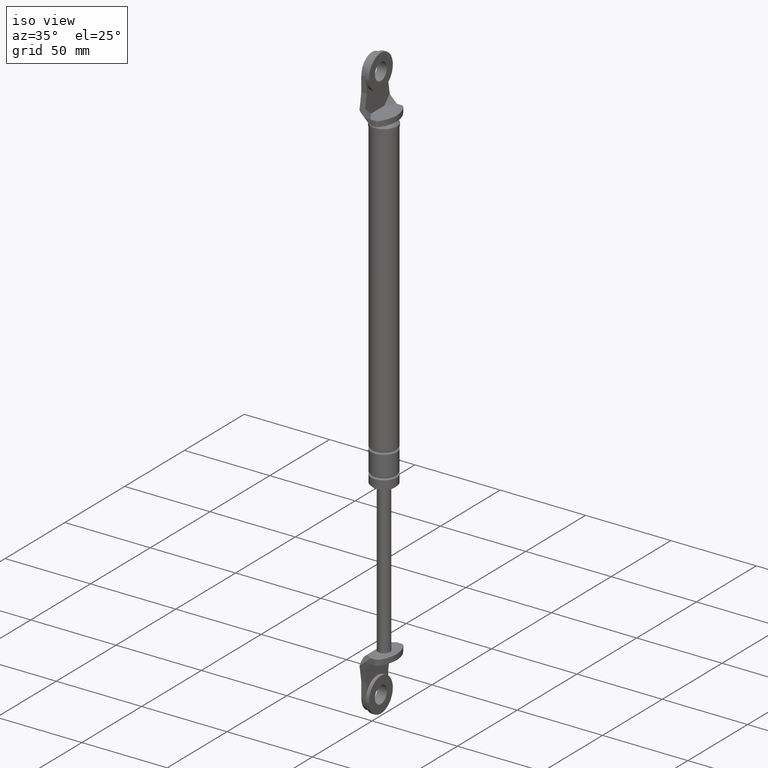
[diagram: clean part render]
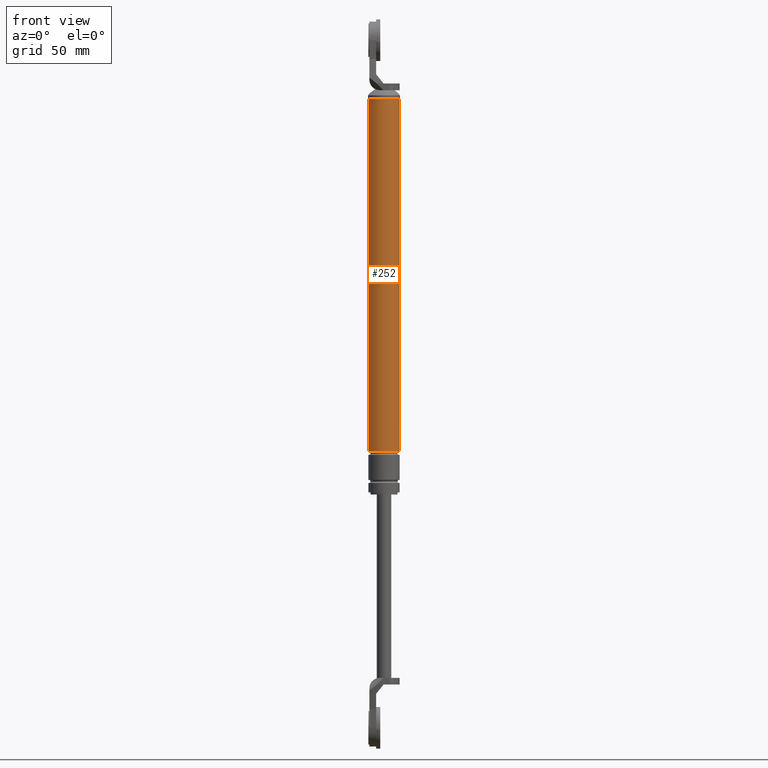
[diagram: tour spotlight — one face highlighted and labeled with its STEP entity id]
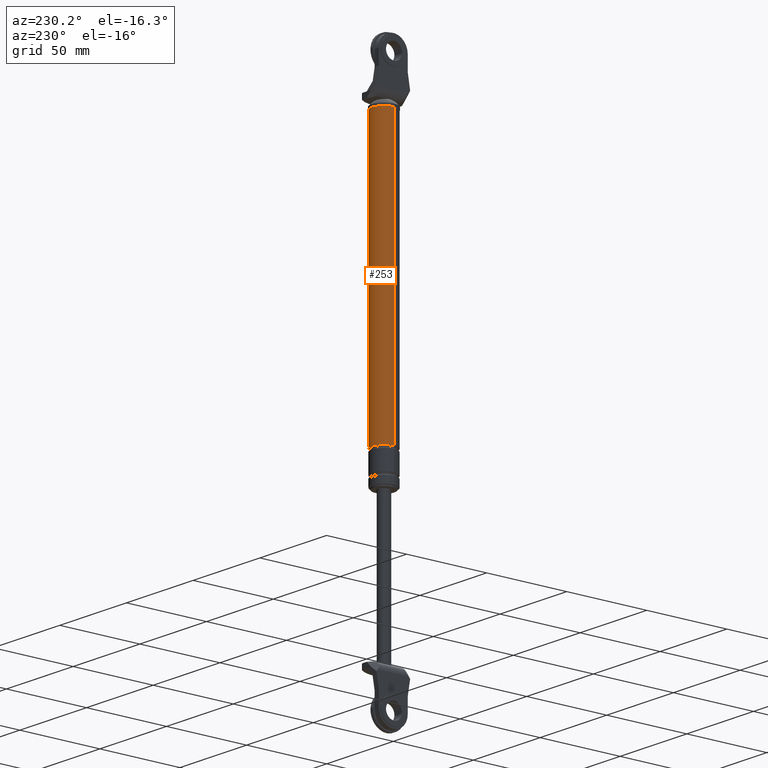
[diagram: tour spotlight — one face highlighted and labeled with its STEP entity id]
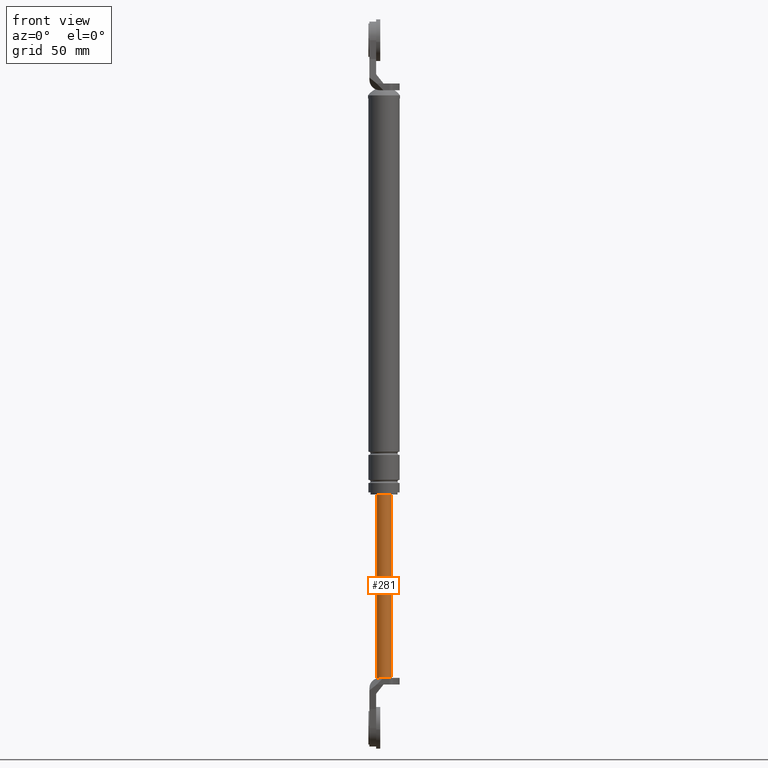
[diagram: tour spotlight — one face highlighted and labeled with its STEP entity id]
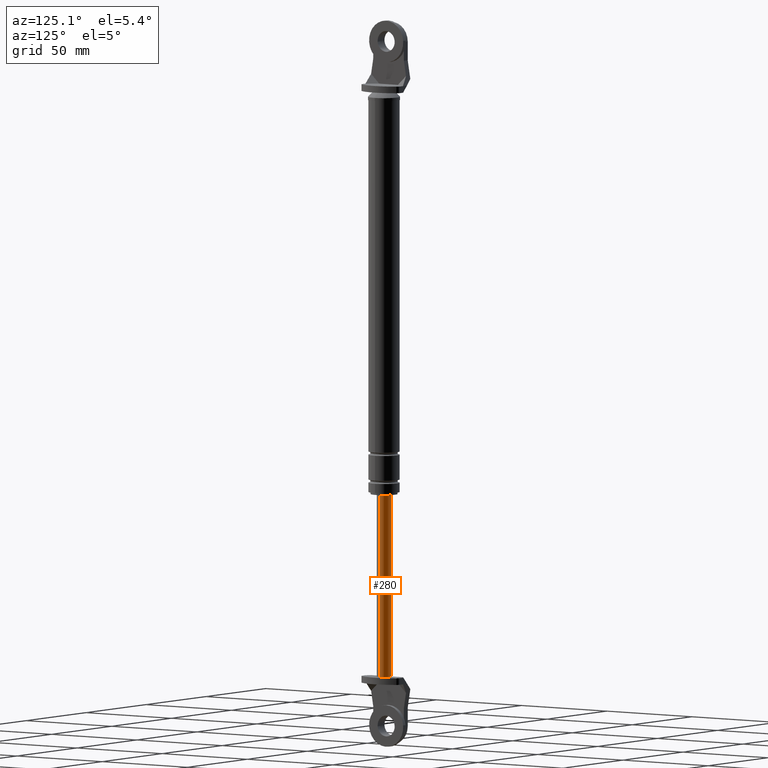
[diagram: tour spotlight — one face highlighted and labeled with its STEP entity id]
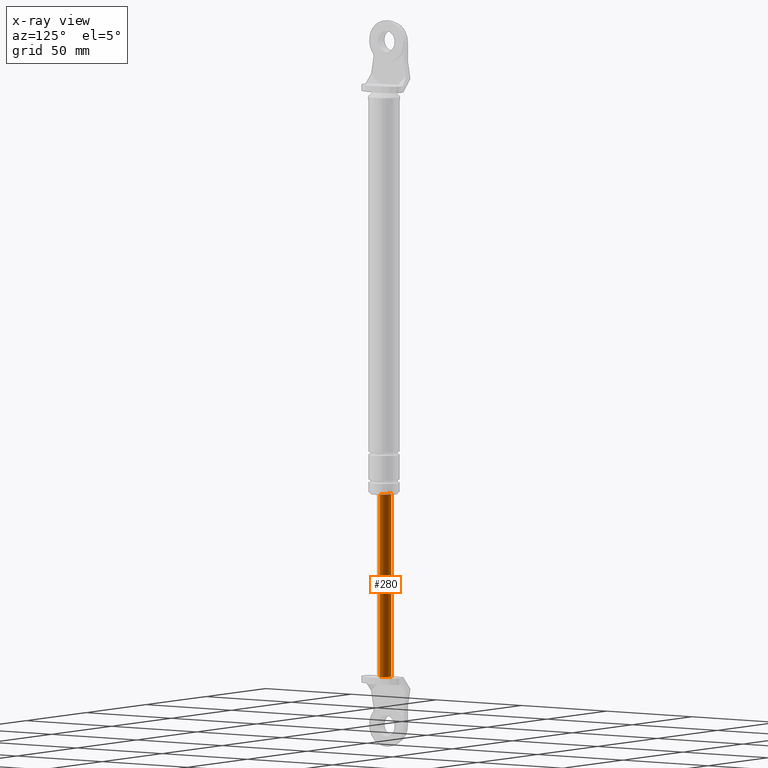
[diagram: x-ray of the same camera — body ghosted, this tour face saturated]
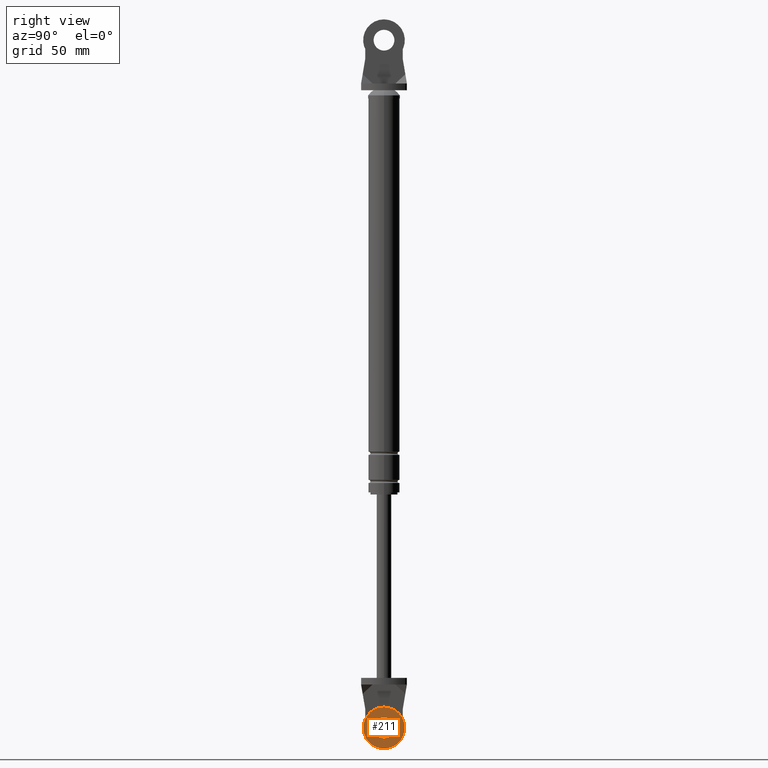
[diagram: tour spotlight — one face highlighted and labeled with its STEP entity id]
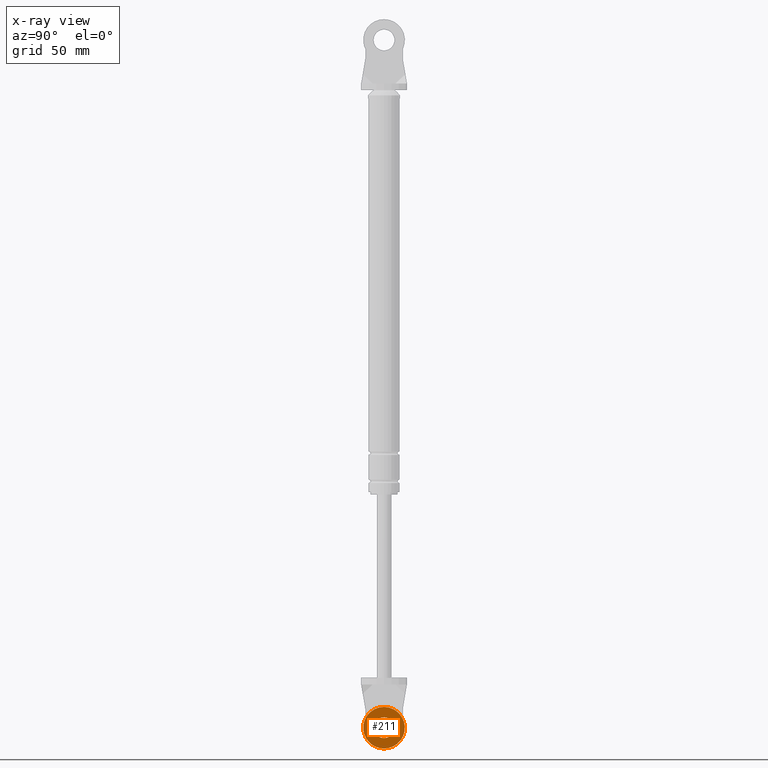
[diagram: x-ray of the same camera — body ghosted, this tour face saturated]
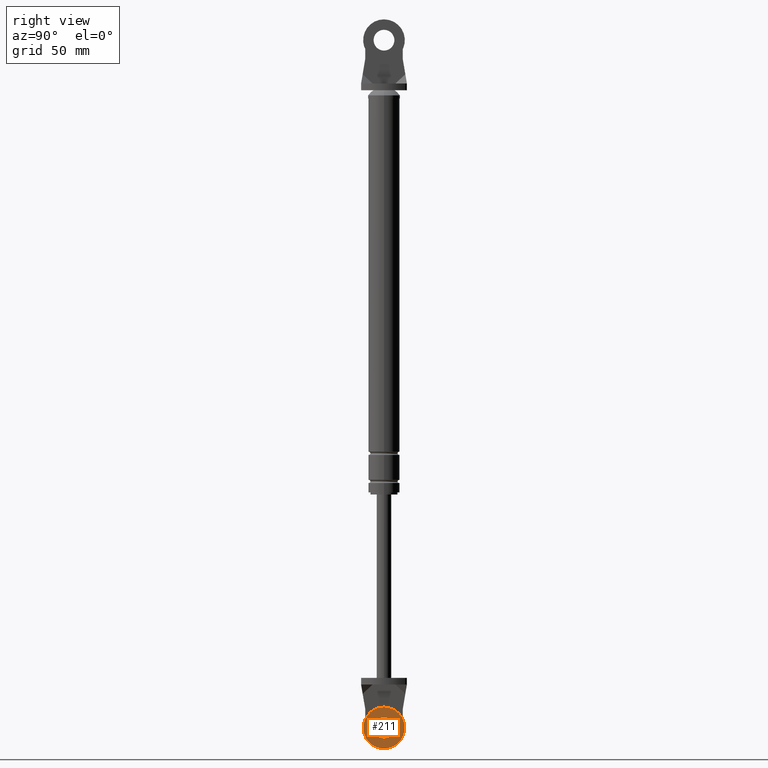
[diagram: tour spotlight — one face highlighted and labeled with its STEP entity id]
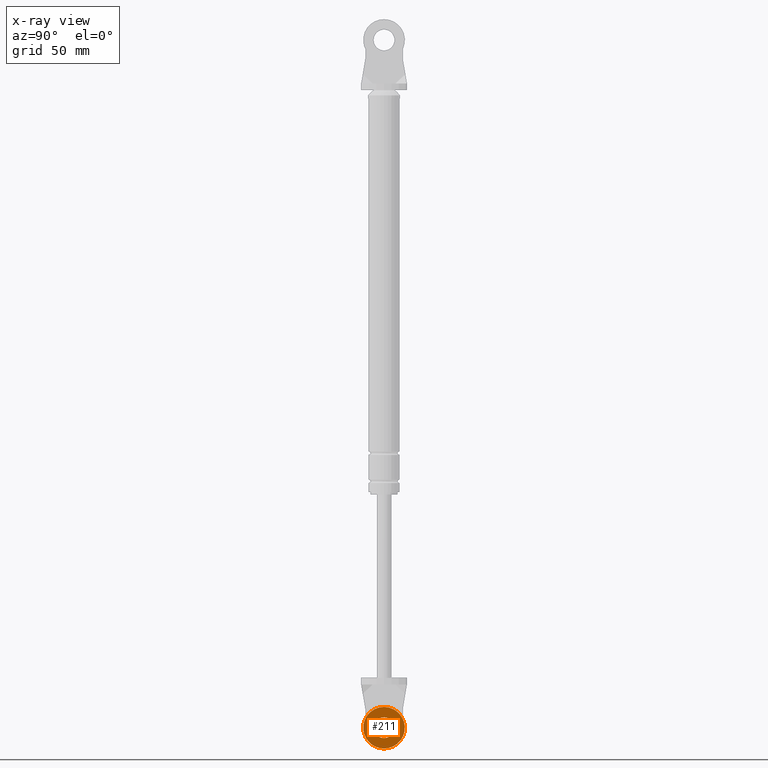
[diagram: x-ray of the same camera — body ghosted, this tour face saturated]
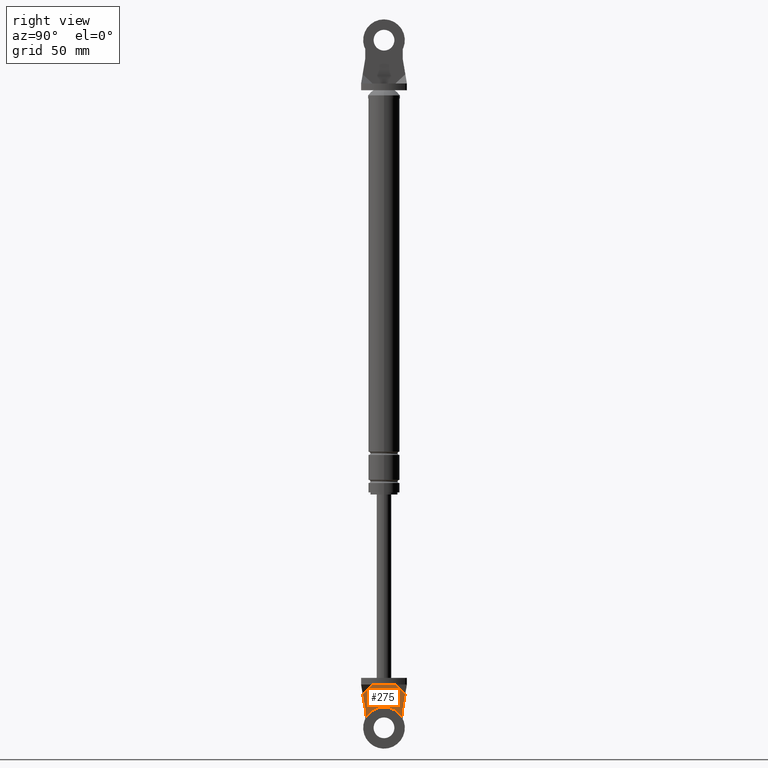
[diagram: tour spotlight — one face highlighted and labeled with its STEP entity id]
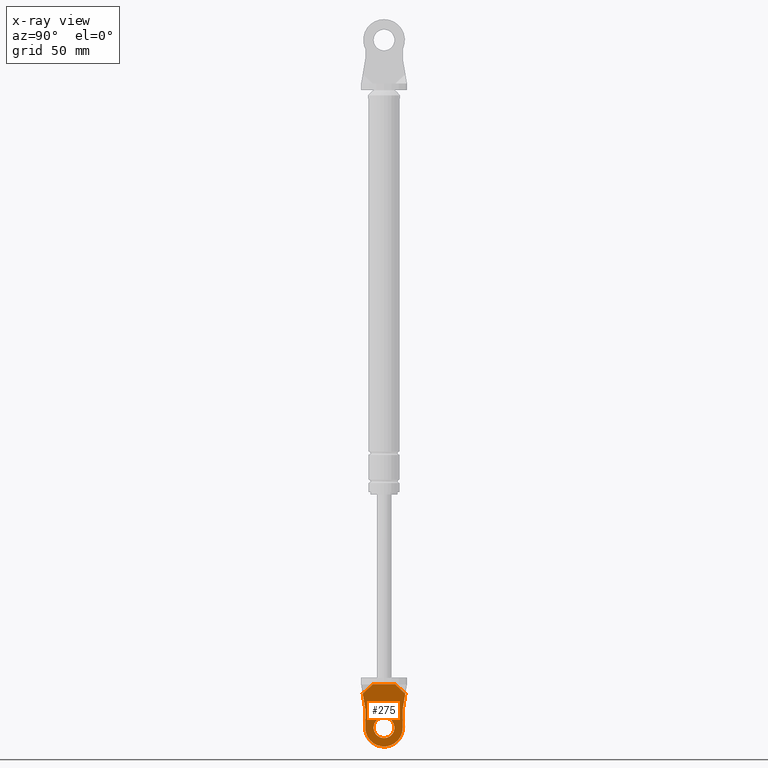
[diagram: x-ray of the same camera — body ghosted, this tour face saturated]
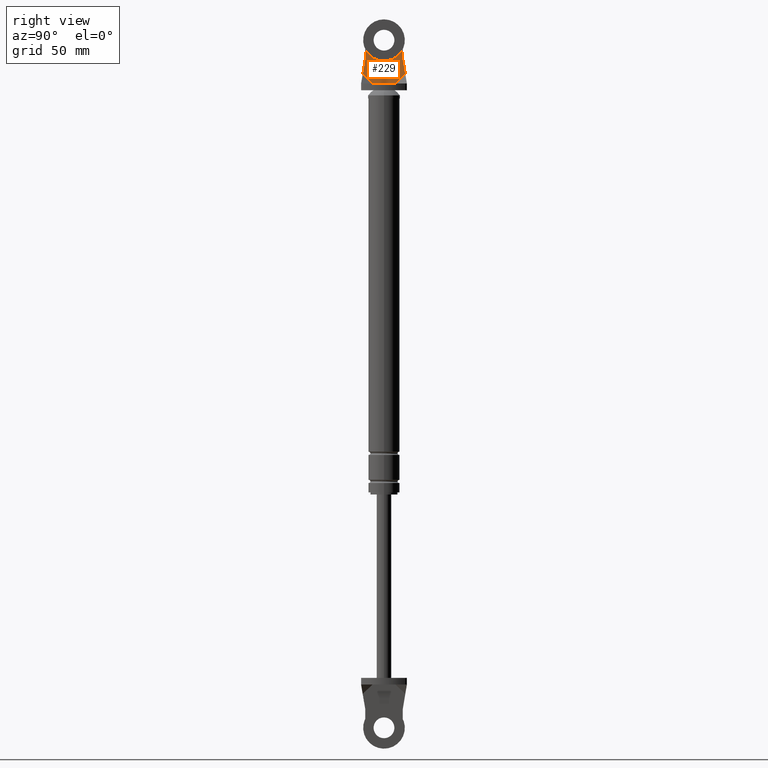
[diagram: tour spotlight — one face highlighted and labeled with its STEP entity id]
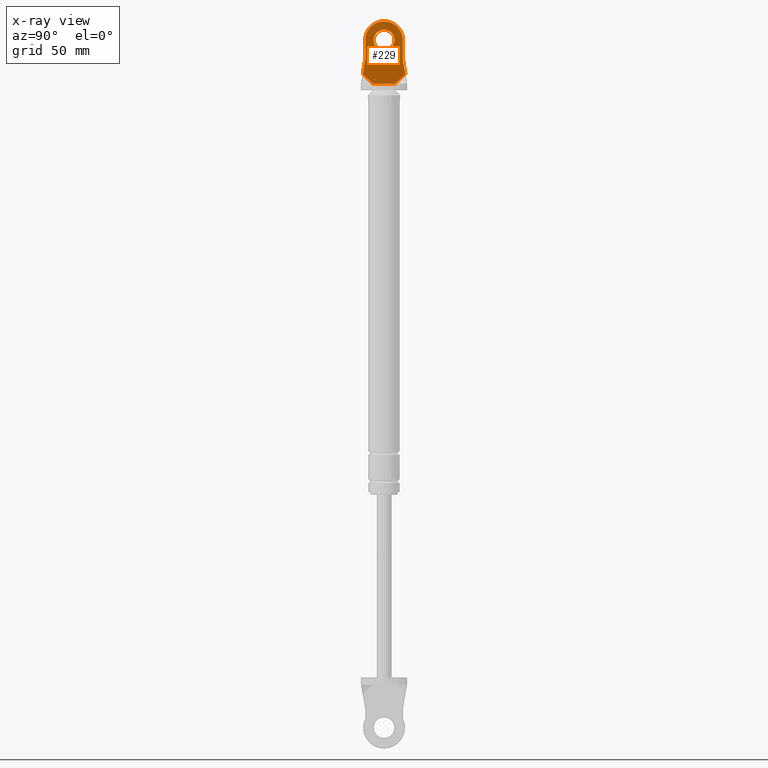
[diagram: x-ray of the same camera — body ghosted, this tour face saturated]
A machine part: a face-by-face anatomy tour. The part has 92 B-rep faces; the first image is the clean iso view, then the 8 largest visible faces are spotlighted one at a time (largest first), each with its STEP entity span.

Face 1 — front view, entity #252. In plain terms, the highlighted cylindrical surface (edge-blend (fillet) strip) has radius 7.5 mm, axis along (0, 0, -1).
Definition (entity closure, byte-faithful):
#252=ADVANCED_FACE('',(#777),#776,.T.);
#776=CYLINDRICAL_SURFACE('',#1395,7.50000000000E+000);
#777=FACE_OUTER_BOUND('',#1396,.T.);
#1392=CARTESIAN_POINT('',(7.00000000000E+000,0.00000000000E+000,1.02800000000E+003));
#1393=DIRECTION('',(-0.00000000000E+000,-0.00000000000E+000,1.00000000000E+000));
#1394=DIRECTION('',(1.00000000000E+000,-0.00000000000E+000,-0.00000000000E+000));
#1395=AXIS2_PLACEMENT_3D('',#1392,#1393,#1394);
#1396=EDGE_LOOP('',(#1836,#1837,#1838,#1839));
#1836=ORIENTED_EDGE('',*,*,#2100,.F.);
#1837=ORIENTED_EDGE('',*,*,#2124,.F.);
#1838=ORIENTED_EDGE('',*,*,#2030,.F.);
#1839=ORIENTED_EDGE('',*,*,#2125,.T.);
#2030=EDGE_CURVE('',#2426,#2427,#2428,.T.);
#2100=EDGE_CURVE('',#2898,#2899,#2900,.T.);
#2124=EDGE_CURVE('',#2427,#2898,#3056,.T.);
#2125=EDGE_CURVE('',#2426,#2899,#3062,.T.);
#2426=VERTEX_POINT('',#3676);
#2427=VERTEX_POINT('',#3677);
#2428=CIRCLE('',#3681,7.50000000000E+000);
#2898=VERTEX_POINT('',#3978);
#2899=VERTEX_POINT('',#3979);
#2900=CIRCLE('',#3983,7.50000000000E+000);
#3056=(BOUNDED_CURVE() B_SPLINE_CURVE(1,(#4076,#4077),.UNSPECIFIED.,.F.,.F.) B_SPLINE_CURVE_WITH_KNOTS((2,2),(5.27704486623E-002,9.47229551296E-001),.UNSPECIFIED.) CURVE() GEOMETRIC_REPRESENTATION_ITEM() RATIONAL_B_SPLINE_CURVE((1.00000000000E+000,1.00000000000E+000)) REPRESENTATION_ITEM('') );
#3062=(BOUNDED_CURVE() B_SPLINE_CURVE(1,(#4078,#4079),.UNSPECIFIED.,.F.,.F.) B_SPLINE_CURVE_WITH_KNOTS((2,2),(5.27704485488E-002,9.47229551451E-001),.UNSPECIFIED.) CURVE() GEOMETRIC_REPRESENTATION_ITEM() RATIONAL_B_SPLINE_CURVE((7.50000000000E-001,7.50000000000E-001)) REPRESENTATION_ITEM('') );
#3676=CARTESIAN_POINT('',(-5.00000000000E-001,0.00000000000E+000,2.80000000000E+001));
#3677=CARTESIAN_POINT('',(1.45000000000E+001,5.92118946467E-016,2.80000000000E+001));
#3678=CARTESIAN_POINT('',(7.00000000000E+000,0.00000000000E+000,2.80000000000E+001));
#3679=DIRECTION('',(-0.00000000000E+000,0.00000000000E+000,-1.00000000000E+000));
#3680=DIRECTION('',(-1.00000000000E+000,-1.22460635382E-016,0.00000000000E+000));
#3681=AXIS2_PLACEMENT_3D('',#3678,#3679,#3680);
#3978=CARTESIAN_POINT('',(1.45000000000E+001,0.00000000000E+000,1.97500000000E+002));
#3979=CARTESIAN_POINT('',(-5.00000000000E-001,5.92118946467E-016,1.97500000000E+002));
#3980=CARTESIAN_POINT('',(7.00000000000E+000,0.00000000000E+000,1.97500000000E+002));
#3981=DIRECTION('',(0.00000000000E+000,0.00000000000E+000,1.00000000000E+000));
#3982=DIRECTION('',(1.00000000000E+000,-1.22460635382E-016,0.00000000000E+000));
#3983=AXIS2_PLACEMENT_3D('',#3980,#3981,#3982);
#4076=CARTESIAN_POINT('',(1.45000000000E+001,0.00000000000E+000,2.80000000215E+001));
#4077=CARTESIAN_POINT('',(1.45000000000E+001,0.00000000000E+000,1.97499999971E+002));
#4078=CARTESIAN_POINT('',(-5.00000000000E-001,-2.96059473233E-016,2.80000000000E+001));
#4079=CARTESIAN_POINT('',(-5.00000000000E-001,-2.96059473233E-016,1.97500000000E+002));

Face 2 — auxiliary view, entity #253. In plain terms, the highlighted cylindrical surface (edge-blend (fillet) strip) has radius 7.5 mm, axis along (0, 0, -1).
Definition (entity closure, byte-faithful):
#253=ADVANCED_FACE('',(#787),#786,.T.);
#786=CYLINDRICAL_SURFACE('',#1400,7.50000000000E+000);
#787=FACE_OUTER_BOUND('',#1401,.T.);
#1397=CARTESIAN_POINT('',(7.00000000000E+000,0.00000000000E+000,1.02800000000E+003));
#1398=DIRECTION('',(-0.00000000000E+000,-0.00000000000E+000,1.00000000000E+000));
#1399=DIRECTION('',(1.00000000000E+000,-0.00000000000E+000,-0.00000000000E+000));
#1400=AXIS2_PLACEMENT_3D('',#1397,#1398,#1399);
#1401=EDGE_LOOP('',(#1840,#1841,#1842,#1843));
#1840=ORIENTED_EDGE('',*,*,#2031,.F.);
#1841=ORIENTED_EDGE('',*,*,#2124,.T.);
#1842=ORIENTED_EDGE('',*,*,#2101,.F.);
#1843=ORIENTED_EDGE('',*,*,#2125,.F.);
#2031=EDGE_CURVE('',#2427,#2426,#2434,.T.);
#2101=EDGE_CURVE('',#2899,#2898,#2906,.T.);
#2124=EDGE_CURVE('',#2427,#2898,#3056,.T.);
#2125=EDGE_CURVE('',#2426,#2899,#3062,.T.);
#2426=VERTEX_POINT('',#3676);
#2427=VERTEX_POINT('',#3677);
#2434=CIRCLE('',#3685,7.50000000000E+000);
#2898=VERTEX_POINT('',#3978);
#2899=VERTEX_POINT('',#3979);
#2906=CIRCLE('',#3987,7.50000000000E+000);
#3056=(BOUNDED_CURVE() B_SPLINE_CURVE(1,(#4076,#4077),.UNSPECIFIED.,.F.,.F.) B_SPLINE_CURVE_WITH_KNOTS((2,2),(5.27704486623E-002,9.47229551296E-001),.UNSPECIFIED.) CURVE() GEOMETRIC_REPRESENTATION_ITEM() RATIONAL_B_SPLINE_CURVE((1.00000000000E+000,1.00000000000E+000)) REPRESENTATION_ITEM('') );
#3062=(BOUNDED_CURVE() B_SPLINE_CURVE(1,(#4078,#4079),.UNSPECIFIED.,.F.,.F.) B_SPLINE_CURVE_WITH_KNOTS((2,2),(5.27704485488E-002,9.47229551451E-001),.UNSPECIFIED.) CURVE() GEOMETRIC_REPRESENTATION_ITEM() RATIONAL_B_SPLINE_CURVE((7.50000000000E-001,7.50000000000E-001)) REPRESENTATION_ITEM('') );
#3676=CARTESIAN_POINT('',(-5.00000000000E-001,0.00000000000E+000,2.80000000000E+001));
#3677=CARTESIAN_POINT('',(1.45000000000E+001,5.92118946467E-016,2.80000000000E+001));
#3682=CARTESIAN_POINT('',(7.00000000000E+000,0.00000000000E+000,2.80000000000E+001));
#3683=DIRECTION('',(-0.00000000000E+000,0.00000000000E+000,-1.00000000000E+000));
#3684=DIRECTION('',(-1.00000000000E+000,-1.22460635382E-016,0.00000000000E+000));
#3685=AXIS2_PLACEMENT_3D('',#3682,#3683,#3684);
#3978=CARTESIAN_POINT('',(1.45000000000E+001,0.00000000000E+000,1.97500000000E+002));
#3979=CARTESIAN_POINT('',(-5.00000000000E-001,5.92118946467E-016,1.97500000000E+002));
#3984=CARTESIAN_POINT('',(7.00000000000E+000,0.00000000000E+000,1.97500000000E+002));
#3985=DIRECTION('',(0.00000000000E+000,0.00000000000E+000,1.00000000000E+000));
#3986=DIRECTION('',(1.00000000000E+000,-1.22460635382E-016,0.00000000000E+000));
#3987=AXIS2_PLACEMENT_3D('',#3984,#3985,#3986);
#4076=CARTESIAN_POINT('',(1.45000000000E+001,0.00000000000E+000,2.80000000215E+001));
#4077=CARTESIAN_POINT('',(1.45000000000E+001,0.00000000000E+000,1.97499999971E+002));
#4078=CARTESIAN_POINT('',(-5.00000000000E-001,-2.96059473233E-016,2.80000000000E+001));
#4079=CARTESIAN_POINT('',(-5.00000000000E-001,-2.96059473233E-016,1.97500000000E+002));

Face 3 — front view, entity #281. In plain terms, the highlighted cylindrical surface (edge-blend (fillet) strip) has radius 3.5 mm, axis along (-0, 0, 1).
Definition (entity closure, byte-faithful):
#281=ADVANCED_FACE('',(#1069),#1068,.T.);
#1068=CYLINDRICAL_SURFACE('',#1584,3.50000000000E+000);
#1069=FACE_OUTER_BOUND('',#1585,.T.);
#1581=CARTESIAN_POINT('',(7.00000000000E+000,6.39488462184E-014,-6.93000000000E+002));
#1582=DIRECTION('',(-0.00000000000E+000,-0.00000000000E+000,-1.00000000000E+000));
#1583=DIRECTION('',(1.00000000000E+000,-0.00000000000E+000,-0.00000000000E+000));
#1584=AXIS2_PLACEMENT_3D('',#1581,#1582,#1583);
#1585=EDGE_LOOP('',(#1983,#1984,#1985,#1986,#1987));
#1983=ORIENTED_EDGE('',*,*,#2158,.F.);
#1984=ORIENTED_EDGE('',*,*,#2172,.T.);
#1985=ORIENTED_EDGE('',*,*,#2192,.T.);
#1986=ORIENTED_EDGE('',*,*,#2156,.F.);
#1987=ORIENTED_EDGE('',*,*,#2193,.F.);
#2156=EDGE_CURVE('',#3264,#3263,#3271,.T.);
#2158=EDGE_CURVE('',#3277,#3285,#3286,.T.);
#2172=EDGE_CURVE('',#3277,#3371,#3378,.T.);
#2192=EDGE_CURVE('',#3371,#3263,#3506,.T.);
#2193=EDGE_CURVE('',#3285,#3264,#3512,.T.);
#3263=VERTEX_POINT('',#4188);
#3264=VERTEX_POINT('',#4189);
#3271=CIRCLE('',#4197,3.50000000000E+000);
#3277=VERTEX_POINT('',#4198);
#3285=VERTEX_POINT('',#4203);
#3286=(BOUNDED_CURVE() B_SPLINE_CURVE(3,(#4204,#4205,#4206,#4207,#4208,#4209,#4210,#4211,#4212,#4213),.UNSPECIFIED.,.F.,.F.) B_SPLINE_CURVE_WITH_KNOTS((4,2,2,2,4),(3.34434791223E-003,4.18541121011E-003,5.02647450800E-003,5.86753780588E-003,6.70946929516E-003),.UNSPECIFIED.) CURVE() GEOMETRIC_REPRESENTATION_ITEM() RATIONAL_B_SPLINE_CURVE((1.00000000000E+000,1.00000000000E+000,1.00000000000E+000,1.00000000000E+000,1.00000000000E+000,1.00000000000E+000,1.00000000000E+000,1.00000000000E+000,1.00000000000E+000,1.00000000000E+000)) REPRESENTATION_ITEM('') );
#3371=VERTEX_POINT('',#4267);
#3378=CIRCLE('',#4275,3.50000000000E+000);
#3506=(BOUNDED_CURVE() B_SPLINE_CURVE(1,(#4344,#4345),.UNSPECIFIED.,.F.,.F.) B_SPLINE_CURVE_WITH_KNOTS((2,2),(8.55089452111E-002,9.16666666824E-001),.UNSPECIFIED.) CURVE() GEOMETRIC_REPRESENTATION_ITEM() RATIONAL_B_SPLINE_CURVE((1.00000000000E+000,1.00000000000E+000)) REPRESENTATION_ITEM('') );
#3512=(BOUNDED_CURVE() B_SPLINE_CURVE(1,(#4346,#4347),.UNSPECIFIED.,.F.,.F.) B_SPLINE_CURVE_WITH_KNOTS((2,2),(8.33337324108E-002,9.16666666667E-001),.UNSPECIFIED.) CURVE() GEOMETRIC_REPRESENTATION_ITEM() RATIONAL_B_SPLINE_CURVE((7.50000000000E-001,7.50000000000E-001)) REPRESENTATION_ITEM('') );
#4188=CARTESIAN_POINT('',(1.05000000000E+001,6.39488462184E-014,2.18000000000E+002));
#4189=CARTESIAN_POINT('',(3.50000000000E+000,6.38008164818E-014,2.18000000000E+002));
#4194=CARTESIAN_POINT('',(7.00000000000E+000,6.39488462184E-014,2.18000000000E+002));
#4195=DIRECTION('',(0.00000000000E+000,0.00000000000E+000,-1.00000000000E+000));
#4196=DIRECTION('',(1.00000000000E+000,1.22460635382E-016,0.00000000000E+000));
#4197=AXIS2_PLACEMENT_3D('',#4194,#4195,#4196);
#4198=CARTESIAN_POINT('',(5.00000000000E+000,2.87228132327E+000,3.06000000000E+002));
#4203=CARTESIAN_POINT('',(3.50000091517E+000,-2.53326592987E-003,3.06230303704E+002));
#4204=CARTESIAN_POINT('',(5.00000000000E+000,2.87228132327E+000,3.06000000000E+002));
#4205=CARTESIAN_POINT('',(4.76716664125E+000,2.71015698199E+000,3.06000000000E+002));
#4206=CARTESIAN_POINT('',(4.55808157072E+000,2.52318194664E+000,3.06016035406E+002));
#4207=CARTESIAN_POINT('',(4.18584671777E+000,2.09998906074E+000,3.06063164029E+002));
#4208=CARTESIAN_POINT('',(4.02654942899E+000,1.86724781926E+000,3.06093885871E+002));
#4209=CARTESIAN_POINT('',(3.76803305696E+000,1.37201034832E+000,3.06152338779E+002));
#4210=CARTESIAN_POINT('',(3.66724217685E+000,1.10490389736E+000,3.06180398209E+002));
#4211=CARTESIAN_POINT('',(3.53414800065E+000,5.62100746100E-001,3.06219196432E+002));
#4212=CARTESIAN_POINT('',(3.49986644238E+000,2.81243707189E-001,3.06230345995E+002));
#4213=CARTESIAN_POINT('',(3.50000053060E+000,-1.94923060108E-003,3.06230303826E+002));
#4267=CARTESIAN_POINT('',(1.05000000000E+001,6.30200217923E-014,3.06000000000E+002));
#4272=CARTESIAN_POINT('',(7.00000000000E+000,6.39488462184E-014,3.06000000000E+002));
#4273=DIRECTION('',(0.00000000000E+000,-0.00000000000E+000,-1.00000000000E+000));
#4274=DIRECTION('',(-5.71428571429E-001,-8.20651806648E-001,0.00000000000E+000));
#4275=AXIS2_PLACEMENT_3D('',#4272,#4273,#4274);
#4344=CARTESIAN_POINT('',(1.05000000000E+001,6.39488462184E-014,3.06000000008E+002));
#4345=CARTESIAN_POINT('',(1.05000000000E+001,6.39488462184E-014,2.17999999983E+002));
#4346=CARTESIAN_POINT('',(3.50000000000E+000,6.39488462184E-014,3.06230303742E+002));
#4347=CARTESIAN_POINT('',(3.50000000000E+000,6.39488462184E-014,2.18000000000E+002));

Face 4 — auxiliary view, entity #280. An x-ray twin of the same camera follows (body ghosted, this face saturated) — the face is partly hidden behind the body. In plain terms, the highlighted cylindrical surface (edge-blend (fillet) strip) has radius 3.5 mm, axis along (-0, 0, 1).
Definition (entity closure, byte-faithful):
#280=ADVANCED_FACE('',(#1059),#1058,.T.);
#1058=CYLINDRICAL_SURFACE('',#1579,3.50000000000E+000);
#1059=FACE_OUTER_BOUND('',#1580,.T.);
#1576=CARTESIAN_POINT('',(7.00000000000E+000,6.39488462184E-014,-6.93000000000E+002));
#1577=DIRECTION('',(-0.00000000000E+000,-0.00000000000E+000,-1.00000000000E+000));
#1578=DIRECTION('',(1.00000000000E+000,-0.00000000000E+000,-0.00000000000E+000));
#1579=AXIS2_PLACEMENT_3D('',#1576,#1577,#1578);
#1580=EDGE_LOOP('',(#1978,#1979,#1980,#1981,#1982));
#1978=ORIENTED_EDGE('',*,*,#2155,.F.);
#1979=ORIENTED_EDGE('',*,*,#2192,.F.);
#1980=ORIENTED_EDGE('',*,*,#2171,.T.);
#1981=ORIENTED_EDGE('',*,*,#2159,.F.);
#1982=ORIENTED_EDGE('',*,*,#2193,.T.);
#2155=EDGE_CURVE('',#3263,#3264,#3265,.T.);
#2159=EDGE_CURVE('',#3285,#3292,#3293,.T.);
#2171=EDGE_CURVE('',#3371,#3292,#3372,.T.);
#2192=EDGE_CURVE('',#3371,#3263,#3506,.T.);
#2193=EDGE_CURVE('',#3285,#3264,#3512,.T.);
#3263=VERTEX_POINT('',#4188);
#3264=VERTEX_POINT('',#4189);
#3265=CIRCLE('',#4193,3.50000000000E+000);
#3285=VERTEX_POINT('',#4203);
#3292=VERTEX_POINT('',#4214);
#3293=(BOUNDED_CURVE() B_SPLINE_CURVE(3,(#4215,#4216,#4217,#4218,#4219,#4220,#4221,#4222,#4223,#4224,#4225,#4226),.UNSPECIFIED.,.F.,.F.) B_SPLINE_CURVE_WITH_KNOTS((4,2,2,2,2,4),(6.70946929516E-003,7.54966440166E-003,7.97019605060E-003,8.39072769954E-003,9.23179099743E-003,1.00728542953E-002),.UNSPECIFIED.) CURVE() GEOMETRIC_REPRESENTATION_ITEM() RATIONAL_B_SPLINE_CURVE((1.00000000000E+000,1.00000000000E+000,1.00000000000E+000,1.00000000000E+000,1.00000000000E+000,1.00000000000E+000,1.00000000000E+000,1.00000000000E+000,1.00000000000E+000,1.00000000000E+000,1.00000000000E+000,1.00000000000E+000)) REPRESENTATION_ITEM('') );
#3371=VERTEX_POINT('',#4267);
#3372=CIRCLE('',#4271,3.50000000000E+000);
#3506=(BOUNDED_CURVE() B_SPLINE_CURVE(1,(#4344,#4345),.UNSPECIFIED.,.F.,.F.) B_SPLINE_CURVE_WITH_KNOTS((2,2),(8.55089452111E-002,9.16666666824E-001),.UNSPECIFIED.) CURVE() GEOMETRIC_REPRESENTATION_ITEM() RATIONAL_B_SPLINE_CURVE((1.00000000000E+000,1.00000000000E+000)) REPRESENTATION_ITEM('') );
#3512=(BOUNDED_CURVE() B_SPLINE_CURVE(1,(#4346,#4347),.UNSPECIFIED.,.F.,.F.) B_SPLINE_CURVE_WITH_KNOTS((2,2),(8.33337324108E-002,9.16666666667E-001),.UNSPECIFIED.) CURVE() GEOMETRIC_REPRESENTATION_ITEM() RATIONAL_B_SPLINE_CURVE((7.50000000000E-001,7.50000000000E-001)) REPRESENTATION_ITEM('') );
#4188=CARTESIAN_POINT('',(1.05000000000E+001,6.39488462184E-014,2.18000000000E+002));
#4189=CARTESIAN_POINT('',(3.50000000000E+000,6.38008164818E-014,2.18000000000E+002));
#4190=CARTESIAN_POINT('',(7.00000000000E+000,6.39488462184E-014,2.18000000000E+002));
#4191=DIRECTION('',(0.00000000000E+000,0.00000000000E+000,-1.00000000000E+000));
#4192=DIRECTION('',(1.00000000000E+000,1.22460635382E-016,0.00000000000E+000));
#4193=AXIS2_PLACEMENT_3D('',#4190,#4191,#4192);
#4203=CARTESIAN_POINT('',(3.50000091517E+000,-2.53326592987E-003,3.06230303704E+002));
#4214=CARTESIAN_POINT('',(5.00000000000E+000,-2.87228132327E+000,3.06000000000E+002));
#4215=CARTESIAN_POINT('',(3.50000053060E+000,-1.94923060108E-003,3.06230303826E+002));
#4216=CARTESIAN_POINT('',(3.50013434228E+000,-2.84558116900E-001,3.06230261744E+002));
#4217=CARTESIAN_POINT('',(3.53406286202E+000,-5.62402931972E-001,3.06219214289E+002));
#4218=CARTESIAN_POINT('',(3.63470220298E+000,-9.71866792818E-001,3.06189887439E+002));
#4219=CARTESIAN_POINT('',(3.67695845089E+000,-1.10773629057E+000,3.06177946622E+002));
#4220=CARTESIAN_POINT('',(3.77628905103E+000,-1.37017245046E+000,3.06151787006E+002));
#4221=CARTESIAN_POINT('',(3.83347362821E+000,-1.49752005310E+000,3.06137531156E+002));
#4222=CARTESIAN_POINT('',(4.02729222201E+000,-1.86837650308E+000,3.06093739946E+002));
#4223=CARTESIAN_POINT('',(4.18862121447E+000,-2.10341309695E+000,3.06062756987E+002));
#4224=CARTESIAN_POINT('',(4.55826505313E+000,-2.52311866177E+000,3.06016068386E+002));
#4225=CARTESIAN_POINT('',(4.76658406278E+000,-2.70975132641E+000,3.06000000000E+002));
#4226=CARTESIAN_POINT('',(5.00000000000E+000,-2.87228132327E+000,3.06000000000E+002));
#4267=CARTESIAN_POINT('',(1.05000000000E+001,6.30200217923E-014,3.06000000000E+002));
#4268=CARTESIAN_POINT('',(7.00000000000E+000,6.39488462184E-014,3.06000000000E+002));
#4269=DIRECTION('',(0.00000000000E+000,-0.00000000000E+000,-1.00000000000E+000));
#4270=DIRECTION('',(-5.71428571429E-001,-8.20651806648E-001,0.00000000000E+000));
#4271=AXIS2_PLACEMENT_3D('',#4268,#4269,#4270);
#4344=CARTESIAN_POINT('',(1.05000000000E+001,6.39488462184E-014,3.06000000008E+002));
#4345=CARTESIAN_POINT('',(1.05000000000E+001,6.39488462184E-014,2.17999999983E+002));
#4346=CARTESIAN_POINT('',(3.50000000000E+000,6.39488462184E-014,3.06230303742E+002));
#4347=CARTESIAN_POINT('',(3.50000000000E+000,6.39488462184E-014,2.18000000000E+002));

Face 5 — right view, entity #211. An x-ray twin of the same camera follows (body ghosted, this face saturated) — the face is partly hidden behind the body. In plain terms, the highlighted planar face has unit normal (1, 0, 0).
Definition (entity closure, byte-faithful):
#211=ADVANCED_FACE('',(#358,#359),#357,.T.);
#357=PLANE('',#1139);
#358=FACE_OUTER_BOUND('',#1140,.T.);
#359=FACE_BOUND('',#1141,.T.);
#1136=CARTESIAN_POINT('',(-6.70000310000E+001,2.07846096925E+001,2.66000000003E+002));
#1137=DIRECTION('',(1.00000000000E+000,0.00000000000E+000,0.00000000000E+000));
#1138=DIRECTION('',(0.00000000000E+000,-1.00000000000E+000,0.00000000000E+000));
#1139=AXIS2_PLACEMENT_3D('',#1136,#1137,#1138);
#1140=EDGE_LOOP('',(#1634,#1635,#1636));
#1141=EDGE_LOOP('',(#1637,#1638,#1639));
#1634=ORIENTED_EDGE('',*,*,#2018,.F.);
#1635=ORIENTED_EDGE('',*,*,#2019,.F.);
#1636=ORIENTED_EDGE('',*,*,#2020,.F.);
#1637=ORIENTED_EDGE('',*,*,#2021,.T.);
#1638=ORIENTED_EDGE('',*,*,#2022,.T.);
#1639=ORIENTED_EDGE('',*,*,#2023,.T.);
#2018=EDGE_CURVE('',#2346,#2347,#2348,.T.);
#2019=EDGE_CURVE('',#2354,#2346,#2355,.T.);
#2020=EDGE_CURVE('',#2347,#2354,#2361,.T.);
#2021=EDGE_CURVE('',#2367,#2368,#2369,.T.);
#2022=EDGE_CURVE('',#2368,#2375,#2376,.T.);
#2023=EDGE_CURVE('',#2375,#2367,#2382,.T.);
#2346=VERTEX_POINT('',#3628);
#2347=VERTEX_POINT('',#3629);
#2348=CIRCLE('',#3633,1.00000000008E+001);
#2354=VERTEX_POINT('',#3634);
#2355=CIRCLE('',#3638,1.00000000008E+001);
#2361=CIRCLE('',#3642,1.00000000008E+001);
#2367=VERTEX_POINT('',#3643);
#2368=VERTEX_POINT('',#3644);
#2369=CIRCLE('',#3648,5.00000000174E+000);
#2375=VERTEX_POINT('',#3649);
#2376=CIRCLE('',#3653,5.00000000174E+000);
#2382=CIRCLE('',#3657,5.00000000174E+000);
#3628=CARTESIAN_POINT('',(-6.70000310000E+001,-9.96913532293E+000,2.52214926173E+002));
#3629=CARTESIAN_POINT('',(-6.70000310000E+001,8.49285803892E-014,2.63000000002E+002));
#3630=CARTESIAN_POINT('',(-6.70000310000E+001,7.41160910422E-010,2.53000000001E+002));
#3631=DIRECTION('',(-1.00000000000E+000,1.50728876034E-015,-1.11705783034E-025));
#3632=DIRECTION('',(-2.23406478870E-025,-7.41070316284E-011,1.00000000000E+000));
#3633=AXIS2_PLACEMENT_3D('',#3630,#3631,#3632);
#3634=CARTESIAN_POINT('',(-6.70000310000E+001,9.96917333893E+000,2.53784590957E+002));
#3635=CARTESIAN_POINT('',(-6.70000310000E+001,7.41160910422E-010,2.53000000001E+002));
#3636=DIRECTION('',(-1.00000000000E+000,1.50728876034E-015,-1.11705783034E-025));
#3637=DIRECTION('',(-2.23406478870E-025,-7.41070316284E-011,1.00000000000E+000));
#3638=AXIS2_PLACEMENT_3D('',#3635,#3636,#3637);
#3639=CARTESIAN_POINT('',(-6.70000310000E+001,7.41160910422E-010,2.53000000001E+002));
#3640=DIRECTION('',(-1.00000000000E+000,1.50728876034E-015,-1.11705783034E-025));
#3641=DIRECTION('',(-2.23406478870E-025,-7.41070316284E-011,1.00000000000E+000));
#3642=AXIS2_PLACEMENT_3D('',#3639,#3640,#3641);
#3643=CARTESIAN_POINT('',(-6.70000310000E+001,5.84504371335E-014,2.58000000003E+002));
#3644=CARTESIAN_POINT('',(-6.70000310000E+001,4.98458657258E+000,2.53392296744E+002));
#3645=CARTESIAN_POINT('',(-6.70000310000E+001,1.61135238486E-009,2.53000000002E+002));
#3646=DIRECTION('',(-1.00000000000E+000,0.00000000000E+000,0.00000000000E+000));
#3647=DIRECTION('',(0.00000000000E+000,-3.22258220222E-010,1.00000000000E+000));
#3648=AXIS2_PLACEMENT_3D('',#3645,#3646,#3647);
#3649=CARTESIAN_POINT('',(-6.70000310000E+001,-4.98456766232E+000,2.52607463098E+002));
#3650=CARTESIAN_POINT('',(-6.70000310000E+001,1.61135238486E-009,2.53000000002E+002));
#3651=DIRECTION('',(-1.00000000000E+000,0.00000000000E+000,0.00000000000E+000));
#3652=DIRECTION('',(0.00000000000E+000,-3.22258220222E-010,1.00000000000E+000));
#3653=AXIS2_PLACEMENT_3D('',#3650,#3651,#3652);
#3654=CARTESIAN_POINT('',(-6.70000310000E+001,1.61135238486E-009,2.53000000002E+002));
#3655=DIRECTION('',(-1.00000000000E+000,0.00000000000E+000,0.00000000000E+000));
#3656=DIRECTION('',(0.00000000000E+000,-3.22258220222E-010,1.00000000000E+000));
#3657=AXIS2_PLACEMENT_3D('',#3654,#3655,#3656);

Face 6 — right view, entity #211. An x-ray twin of the same camera follows (body ghosted, this face saturated) — the face is partly hidden behind the body. In plain terms, the highlighted planar face has unit normal (1, 0, 0).
Definition (entity closure, byte-faithful):
#211=ADVANCED_FACE('',(#358,#359),#357,.T.);
#357=PLANE('',#1139);
#358=FACE_OUTER_BOUND('',#1140,.T.);
#359=FACE_BOUND('',#1141,.T.);
#1136=CARTESIAN_POINT('',(-6.70000310000E+001,2.07846096925E+001,2.66000000003E+002));
#1137=DIRECTION('',(1.00000000000E+000,0.00000000000E+000,0.00000000000E+000));
#1138=DIRECTION('',(0.00000000000E+000,-1.00000000000E+000,0.00000000000E+000));
#1139=AXIS2_PLACEMENT_3D('',#1136,#1137,#1138);
#1140=EDGE_LOOP('',(#1634,#1635,#1636));
#1141=EDGE_LOOP('',(#1637,#1638,#1639));
#1634=ORIENTED_EDGE('',*,*,#2018,.F.);
#1635=ORIENTED_EDGE('',*,*,#2019,.F.);
#1636=ORIENTED_EDGE('',*,*,#2020,.F.);
#1637=ORIENTED_EDGE('',*,*,#2021,.T.);
#1638=ORIENTED_EDGE('',*,*,#2022,.T.);
#1639=ORIENTED_EDGE('',*,*,#2023,.T.);
#2018=EDGE_CURVE('',#2346,#2347,#2348,.T.);
#2019=EDGE_CURVE('',#2354,#2346,#2355,.T.);
#2020=EDGE_CURVE('',#2347,#2354,#2361,.T.);
#2021=EDGE_CURVE('',#2367,#2368,#2369,.T.);
#2022=EDGE_CURVE('',#2368,#2375,#2376,.T.);
#2023=EDGE_CURVE('',#2375,#2367,#2382,.T.);
#2346=VERTEX_POINT('',#3628);
#2347=VERTEX_POINT('',#3629);
#2348=CIRCLE('',#3633,1.00000000008E+001);
#2354=VERTEX_POINT('',#3634);
#2355=CIRCLE('',#3638,1.00000000008E+001);
#2361=CIRCLE('',#3642,1.00000000008E+001);
#2367=VERTEX_POINT('',#3643);
#2368=VERTEX_POINT('',#3644);
#2369=CIRCLE('',#3648,5.00000000174E+000);
#2375=VERTEX_POINT('',#3649);
#2376=CIRCLE('',#3653,5.00000000174E+000);
#2382=CIRCLE('',#3657,5.00000000174E+000);
#3628=CARTESIAN_POINT('',(-6.70000310000E+001,-9.96913532293E+000,2.52214926173E+002));
#3629=CARTESIAN_POINT('',(-6.70000310000E+001,8.49285803892E-014,2.63000000002E+002));
#3630=CARTESIAN_POINT('',(-6.70000310000E+001,7.41160910422E-010,2.53000000001E+002));
#3631=DIRECTION('',(-1.00000000000E+000,1.50728876034E-015,-1.11705783034E-025));
#3632=DIRECTION('',(-2.23406478870E-025,-7.41070316284E-011,1.00000000000E+000));
#3633=AXIS2_PLACEMENT_3D('',#3630,#3631,#3632);
#3634=CARTESIAN_POINT('',(-6.70000310000E+001,9.96917333893E+000,2.53784590957E+002));
#3635=CARTESIAN_POINT('',(-6.70000310000E+001,7.41160910422E-010,2.53000000001E+002));
#3636=DIRECTION('',(-1.00000000000E+000,1.50728876034E-015,-1.11705783034E-025));
#3637=DIRECTION('',(-2.23406478870E-025,-7.41070316284E-011,1.00000000000E+000));
#3638=AXIS2_PLACEMENT_3D('',#3635,#3636,#3637);
#3639=CARTESIAN_POINT('',(-6.70000310000E+001,7.41160910422E-010,2.53000000001E+002));
#3640=DIRECTION('',(-1.00000000000E+000,1.50728876034E-015,-1.11705783034E-025));
#3641=DIRECTION('',(-2.23406478870E-025,-7.41070316284E-011,1.00000000000E+000));
#3642=AXIS2_PLACEMENT_3D('',#3639,#3640,#3641);
#3643=CARTESIAN_POINT('',(-6.70000310000E+001,5.84504371335E-014,2.58000000003E+002));
#3644=CARTESIAN_POINT('',(-6.70000310000E+001,4.98458657258E+000,2.53392296744E+002));
#3645=CARTESIAN_POINT('',(-6.70000310000E+001,1.61135238486E-009,2.53000000002E+002));
#3646=DIRECTION('',(-1.00000000000E+000,0.00000000000E+000,0.00000000000E+000));
#3647=DIRECTION('',(0.00000000000E+000,-3.22258220222E-010,1.00000000000E+000));
#3648=AXIS2_PLACEMENT_3D('',#3645,#3646,#3647);
#3649=CARTESIAN_POINT('',(-6.70000310000E+001,-4.98456766232E+000,2.52607463098E+002));
#3650=CARTESIAN_POINT('',(-6.70000310000E+001,1.61135238486E-009,2.53000000002E+002));
#3651=DIRECTION('',(-1.00000000000E+000,0.00000000000E+000,0.00000000000E+000));
#3652=DIRECTION('',(0.00000000000E+000,-3.22258220222E-010,1.00000000000E+000));
#3653=AXIS2_PLACEMENT_3D('',#3650,#3651,#3652);
#3654=CARTESIAN_POINT('',(-6.70000310000E+001,1.61135238486E-009,2.53000000002E+002));
#3655=DIRECTION('',(-1.00000000000E+000,0.00000000000E+000,0.00000000000E+000));
#3656=DIRECTION('',(0.00000000000E+000,-3.22258220222E-010,1.00000000000E+000));
#3657=AXIS2_PLACEMENT_3D('',#3654,#3655,#3656);

Face 7 — right view, entity #275. An x-ray twin of the same camera follows (body ghosted, this face saturated) — the face is partly hidden behind the body. In plain terms, the highlighted planar face has unit normal (1, 0, 0).
Definition (entity closure, byte-faithful):
#275=ADVANCED_FACE('',(#1008,#1009),#1007,.T.);
#1007=PLANE('',#1553);
#1008=FACE_OUTER_BOUND('',#1554,.T.);
#1009=FACE_BOUND('',#1555,.T.);
#1550=CARTESIAN_POINT('',(3.20000000000E+000,1.22847457627E+001,3.06220000000E+002));
#1551=DIRECTION('',(1.00000000000E+000,0.00000000000E+000,-0.00000000000E+000));
#1552=DIRECTION('',(0.00000000000E+000,0.00000000000E+000,1.00000000000E+000));
#1553=AXIS2_PLACEMENT_3D('',#1550,#1551,#1552);
#1554=EDGE_LOOP('',(#1954,#1955,#1956,#1957,#1958,#1959,#1960,#1961));
#1555=EDGE_LOOP('',(#1962,#1963));
#1954=ORIENTED_EDGE('',*,*,#2188,.F.);
#1955=ORIENTED_EDGE('',*,*,#2148,.F.);
#1956=ORIENTED_EDGE('',*,*,#2189,.F.);
#1957=ORIENTED_EDGE('',*,*,#2152,.T.);
#1958=ORIENTED_EDGE('',*,*,#2186,.T.);
#1959=ORIENTED_EDGE('',*,*,#2184,.F.);
#1960=ORIENTED_EDGE('',*,*,#2182,.T.);
#1961=ORIENTED_EDGE('',*,*,#2180,.T.);
#1962=ORIENTED_EDGE('',*,*,#2190,.T.);
#1963=ORIENTED_EDGE('',*,*,#2191,.T.);
#2148=EDGE_CURVE('',#3210,#3217,#3218,.T.);
#2152=EDGE_CURVE('',#3244,#3237,#3245,.T.);
#2180=EDGE_CURVE('',#3429,#3422,#3430,.T.);
#2182=EDGE_CURVE('',#3442,#3429,#3443,.T.);
#2184=EDGE_CURVE('',#3442,#3455,#3456,.T.);
#2186=EDGE_CURVE('',#3237,#3455,#3468,.T.);
#2188=EDGE_CURVE('',#3217,#3422,#3480,.T.);
#2189=EDGE_CURVE('',#3244,#3210,#3486,.T.);
#2190=EDGE_CURVE('',#3492,#3493,#3494,.T.);
#2191=EDGE_CURVE('',#3493,#3492,#3500,.T.);
#3210=VERTEX_POINT('',#4163);
#3217=VERTEX_POINT('',#4166);
#3218=LINE('',#4167,#4168);
#3237=VERTEX_POINT('',#4176);
#3244=VERTEX_POINT('',#4180);
#3245=LINE('',#4181,#4182);
#3422=VERTEX_POINT('',#4297);
#3429=VERTEX_POINT('',#4300);
#3430=LINE('',#4301,#4302);
#3442=VERTEX_POINT('',#4307);
#3443=LINE('',#4308,#4309);
#3455=VERTEX_POINT('',#4314);
#3456=CIRCLE('',#4318,9.00000000000E+000);
#3468=LINE('',#4322,#4323);
#3480=LINE('',#4328,#4329);
#3486=LINE('',#4331,#4332);
#3492=VERTEX_POINT('',#4334);
#3493=VERTEX_POINT('',#4335);
#3494=CIRCLE('',#4339,5.00000000000E+000);
#3500=CIRCLE('',#4343,5.00000000000E+000);
#4163=CARTESIAN_POINT('',(3.20000000000E+000,5.50000000000E+000,3.09200000000E+002));
#4166=CARTESIAN_POINT('',(3.20000000000E+000,-5.50000000000E+000,3.09200000000E+002));
#4167=CARTESIAN_POINT('',(3.20000000000E+000,5.50000000000E+000,3.09200000000E+002));
#4168=VECTOR('',#4169,1.10000000000E+001);
#4169=DIRECTION('',(0.00000000000E+000,-1.00000000000E+000,0.00000000000E+000));
#4176=CARTESIAN_POINT('',(3.20000000000E+000,9.00000000000E+000,3.21000000000E+002));
#4180=CARTESIAN_POINT('',(3.20000000000E+000,1.02372881356E+001,3.13700000000E+002));
#4181=CARTESIAN_POINT('',(3.20000000000E+000,1.02372881356E+001,3.13700000000E+002));
#4182=VECTOR('',#4183,7.40411250120E+000);
#4183=DIRECTION('',(0.00000000000E+000,-1.67108230108E-001,9.85938557634E-001));
#4297=CARTESIAN_POINT('',(3.20000000000E+000,-1.02372881356E+001,3.13700000000E+002));
#4300=CARTESIAN_POINT('',(3.20000000000E+000,-9.00000000000E+000,3.21000000000E+002));
#4301=CARTESIAN_POINT('',(3.20000000000E+000,-9.00000000000E+000,3.21000000000E+002));
#4302=VECTOR('',#4303,7.40411250120E+000);
#4303=DIRECTION('',(0.00000000000E+000,-1.67108230108E-001,-9.85938557634E-001));
#4307=CARTESIAN_POINT('',(3.20000000000E+000,-9.00000000000E+000,3.30000000000E+002));
#4308=CARTESIAN_POINT('',(3.20000000000E+000,-9.00000000000E+000,3.30000000000E+002));
#4309=VECTOR('',#4310,9.00000000000E+000);
#4310=DIRECTION('',(0.00000000000E+000,0.00000000000E+000,-1.00000000000E+000));
#4314=CARTESIAN_POINT('',(3.20000000000E+000,9.00000000000E+000,3.30000000000E+002));
#4315=CARTESIAN_POINT('',(3.20000000000E+000,3.19744231092E-014,3.30000000000E+002));
#4316=DIRECTION('',(-1.00000000000E+000,-0.00000000000E+000,0.00000000000E+000));
#4317=DIRECTION('',(-0.00000000000E+000,-0.00000000000E+000,-1.00000000000E+000));
#4318=AXIS2_PLACEMENT_3D('',#4315,#4316,#4317);
#4322=CARTESIAN_POINT('',(3.20000000000E+000,9.00000000000E+000,3.21000000000E+002));
#4323=VECTOR('',#4324,9.00000000000E+000);
#4324=DIRECTION('',(0.00000000000E+000,0.00000000000E+000,1.00000000000E+000));
#4328=CARTESIAN_POINT('',(3.20000000000E+000,-5.50000000000E+000,3.09200000000E+002));
#4329=VECTOR('',#4330,6.53390380092E+000);
#4330=DIRECTION('',(0.00000000000E+000,-7.25031815578E-001,6.88715374011E-001));
#4331=CARTESIAN_POINT('',(3.20000000000E+000,1.02372881356E+001,3.13700000000E+002));
#4332=VECTOR('',#4333,6.53390380092E+000);
#4333=DIRECTION('',(0.00000000000E+000,-7.25031815578E-001,-6.88715374011E-001));
#4334=CARTESIAN_POINT('',(3.20000000000E+000,3.19744231092E-014,3.35000000000E+002));
#4335=CARTESIAN_POINT('',(3.20000000000E+000,3.13823041627E-014,3.25000000000E+002));
#4336=CARTESIAN_POINT('',(3.20000000000E+000,3.19744231092E-014,3.30000000000E+002));
#4337=DIRECTION('',(-1.00000000000E+000,0.00000000000E+000,0.00000000000E+000));
#4338=DIRECTION('',(0.00000000000E+000,1.22460635382E-016,1.00000000000E+000));
#4339=AXIS2_PLACEMENT_3D('',#4336,#4337,#4338);
#4340=CARTESIAN_POINT('',(3.20000000000E+000,3.19744231092E-014,3.30000000000E+002));
#4341=DIRECTION('',(-1.00000000000E+000,0.00000000000E+000,0.00000000000E+000));
#4342=DIRECTION('',(0.00000000000E+000,1.22460635382E-016,1.00000000000E+000));
#4343=AXIS2_PLACEMENT_3D('',#4340,#4341,#4342);

Face 8 — right view, entity #229. An x-ray twin of the same camera follows (body ghosted, this face saturated) — the face is partly hidden behind the body. In plain terms, the highlighted planar face has unit normal (1, 0, 0).
Definition (entity closure, byte-faithful):
#229=ADVANCED_FACE('',(#540,#541),#539,.T.);
#539=PLANE('',#1231);
#540=FACE_OUTER_BOUND('',#1232,.T.);
#541=FACE_BOUND('',#1233,.T.);
#1228=CARTESIAN_POINT('',(3.20000000000E+000,-1.22847457627E+001,2.37800000000E+001));
#1229=DIRECTION('',(1.00000000000E+000,0.00000000000E+000,0.00000000000E+000));
#1230=DIRECTION('',(0.00000000000E+000,0.00000000000E+000,-1.00000000000E+000));
#1231=AXIS2_PLACEMENT_3D('',#1228,#1229,#1230);
#1232=EDGE_LOOP('',(#1731,#1732,#1733,#1734,#1735,#1736,#1737,#1738));
#1233=EDGE_LOOP('',(#1739,#1740));
#1731=ORIENTED_EDGE('',*,*,#2081,.F.);
#1732=ORIENTED_EDGE('',*,*,#2051,.F.);
#1733=ORIENTED_EDGE('',*,*,#2082,.F.);
#1734=ORIENTED_EDGE('',*,*,#2077,.T.);
#1735=ORIENTED_EDGE('',*,*,#2074,.T.);
#1736=ORIENTED_EDGE('',*,*,#2071,.F.);
#1737=ORIENTED_EDGE('',*,*,#2068,.T.);
#1738=ORIENTED_EDGE('',*,*,#2065,.T.);
#1739=ORIENTED_EDGE('',*,*,#2083,.T.);
#1740=ORIENTED_EDGE('',*,*,#2084,.T.);
#2051=EDGE_CURVE('',#2566,#2573,#2574,.T.);
#2065=EDGE_CURVE('',#2665,#2658,#2666,.T.);
#2068=EDGE_CURVE('',#2685,#2665,#2686,.T.);
#2071=EDGE_CURVE('',#2685,#2705,#2706,.T.);
#2074=EDGE_CURVE('',#2725,#2705,#2726,.T.);
#2077=EDGE_CURVE('',#2744,#2725,#2745,.T.);
#2081=EDGE_CURVE('',#2573,#2658,#2769,.T.);
#2082=EDGE_CURVE('',#2744,#2566,#2775,.T.);
#2083=EDGE_CURVE('',#2781,#2782,#2783,.T.);
#2084=EDGE_CURVE('',#2782,#2781,#2789,.T.);
#2566=VERTEX_POINT('',#3760);
#2573=VERTEX_POINT('',#3763);
#2574=LINE('',#3764,#3765);
#2658=VERTEX_POINT('',#3811);
#2665=VERTEX_POINT('',#3814);
#2666=LINE('',#3815,#3816);
#2685=VERTEX_POINT('',#3825);
#2686=LINE('',#3826,#3827);
#2705=VERTEX_POINT('',#3837);
#2706=CIRCLE('',#3841,9.00000000000E+000);
#2725=VERTEX_POINT('',#3849);
#2726=LINE('',#3850,#3851);
#2744=VERTEX_POINT('',#3859);
#2745=LINE('',#3860,#3861);
#2769=LINE('',#3870,#3871);
#2775=LINE('',#3873,#3874);
#2781=VERTEX_POINT('',#3876);
#2782=VERTEX_POINT('',#3877);
#2783=CIRCLE('',#3881,5.00000000000E+000);
#2789=CIRCLE('',#3885,5.00000000000E+000);
#3760=CARTESIAN_POINT('',(3.20000000000E+000,-5.50000000000E+000,2.08000000000E+001));
#3763=CARTESIAN_POINT('',(3.20000000000E+000,5.50000000000E+000,2.08000000000E+001));
#3764=CARTESIAN_POINT('',(3.20000000000E+000,-5.50000000000E+000,2.08000000000E+001));
#3765=VECTOR('',#3766,1.10000000000E+001);
#3766=DIRECTION('',(0.00000000000E+000,1.00000000000E+000,0.00000000000E+000));
#3811=CARTESIAN_POINT('',(3.20000000000E+000,1.02372881356E+001,1.63000000000E+001));
#3814=CARTESIAN_POINT('',(3.20000000000E+000,9.00000000000E+000,9.00000000000E+000));
#3815=CARTESIAN_POINT('',(3.20000000000E+000,9.00000000000E+000,9.00000000000E+000));
#3816=VECTOR('',#3817,7.40411250120E+000);
#3817=DIRECTION('',(0.00000000000E+000,1.67108230108E-001,9.85938557634E-001));
#3825=CARTESIAN_POINT('',(3.20000000000E+000,9.00000000000E+000,-9.98396631623E-015));
#3826=CARTESIAN_POINT('',(3.20000000000E+000,9.00000000000E+000,-9.98396631623E-015));
#3827=VECTOR('',#3828,9.00000000000E+000);
#3828=DIRECTION('',(0.00000000000E+000,0.00000000000E+000,1.00000000000E+000));
#3837=CARTESIAN_POINT('',(3.20000000000E+000,-9.00000000000E+000,1.40239463254E-015));
#3838=CARTESIAN_POINT('',(3.20000000000E+000,3.19744231092E-014,-8.88178419700E-015));
#3839=DIRECTION('',(-1.00000000000E+000,-0.00000000000E+000,-0.00000000000E+000));
#3840=DIRECTION('',(-0.00000000000E+000,-0.00000000000E+000,1.00000000000E+000));
#3841=AXIS2_PLACEMENT_3D('',#3838,#3839,#3840);
#3849=CARTESIAN_POINT('',(3.20000000000E+000,-9.00000000000E+000,9.00000000000E+000));
#3850=CARTESIAN_POINT('',(3.20000000000E+000,-9.00000000000E+000,9.00000000000E+000));
#3851=VECTOR('',#3852,9.00000000000E+000);
#3852=DIRECTION('',(0.00000000000E+000,0.00000000000E+000,-1.00000000000E+000));
#3859=CARTESIAN_POINT('',(3.20000000000E+000,-1.02372881356E+001,1.63000000000E+001));
#3860=CARTESIAN_POINT('',(3.20000000000E+000,-1.02372881356E+001,1.63000000000E+001));
#3861=VECTOR('',#3862,7.40411250120E+000);
#3862=DIRECTION('',(0.00000000000E+000,1.67108230108E-001,-9.85938557634E-001));
#3870=CARTESIAN_POINT('',(3.20000000000E+000,5.50000000000E+000,2.08000000000E+001));
#3871=VECTOR('',#3872,6.53390380092E+000);
#3872=DIRECTION('',(0.00000000000E+000,7.25031815578E-001,-6.88715374011E-001));
#3873=CARTESIAN_POINT('',(3.20000000000E+000,-1.02372881356E+001,1.63000000000E+001));
#3874=VECTOR('',#3875,6.53390380092E+000);
#3875=DIRECTION('',(0.00000000000E+000,7.25031815578E-001,6.88715374011E-001));
#3876=CARTESIAN_POINT('',(3.20000000000E+000,3.19744231092E-014,-5.00000000000E+000));
#3877=CARTESIAN_POINT('',(3.20000000000E+000,3.25665420557E-014,5.00000000000E+000));
#3878=CARTESIAN_POINT('',(3.20000000000E+000,3.19744231092E-014,-8.88178419700E-015));
#3879=DIRECTION('',(-1.00000000000E+000,0.00000000000E+000,-0.00000000000E+000));
#3880=DIRECTION('',(0.00000000000E+000,-1.22460635382E-016,-1.00000000000E+000));
#3881=AXIS2_PLACEMENT_3D('',#3878,#3879,#3880);
#3882=CARTESIAN_POINT('',(3.20000000000E+000,3.19744231092E-014,-8.88178419700E-015));
#3883=DIRECTION('',(-1.00000000000E+000,0.00000000000E+000,-0.00000000000E+000));
#3884=DIRECTION('',(0.00000000000E+000,-1.22460635382E-016,-1.00000000000E+000));
#3885=AXIS2_PLACEMENT_3D('',#3882,#3883,#3884);